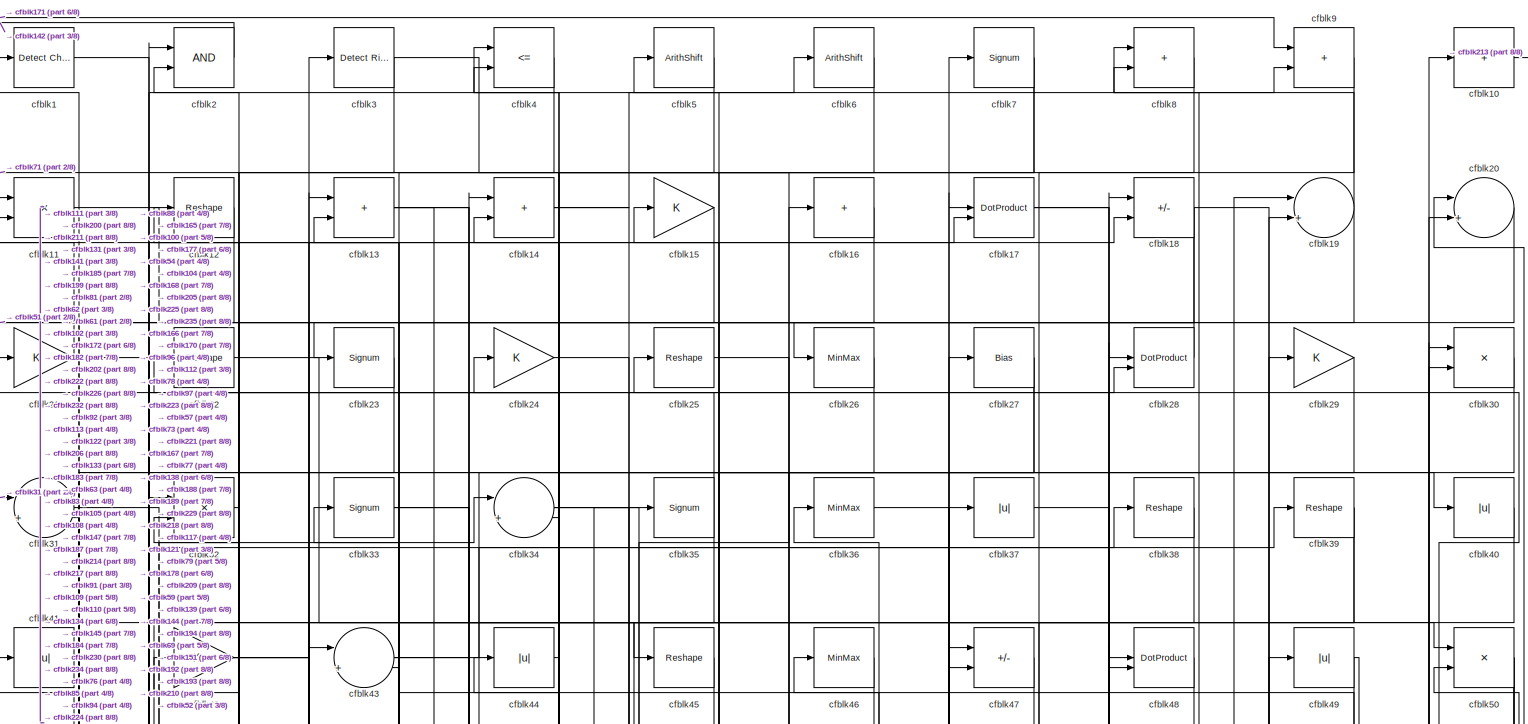
[diagram: root canvas - part 1/8, full width, top band]
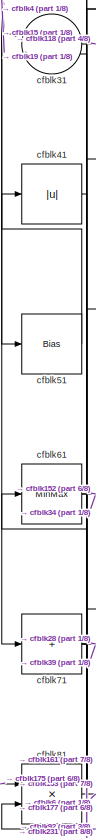
[diagram: root canvas - part 2/8, top left region]
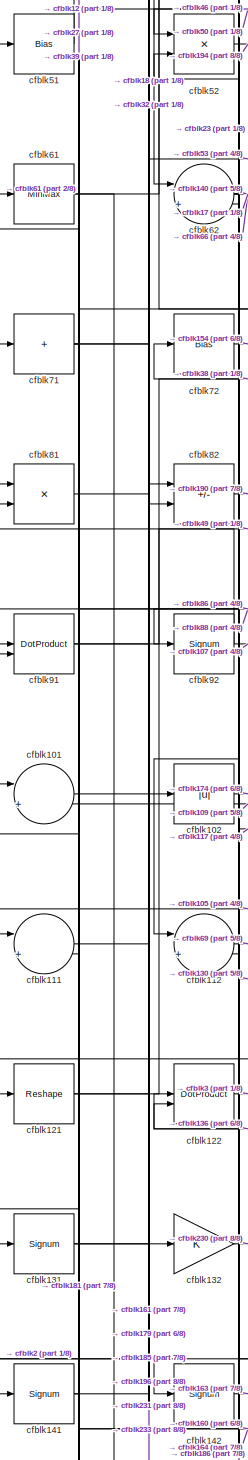
[diagram: root canvas - part 3/8, middle left region]
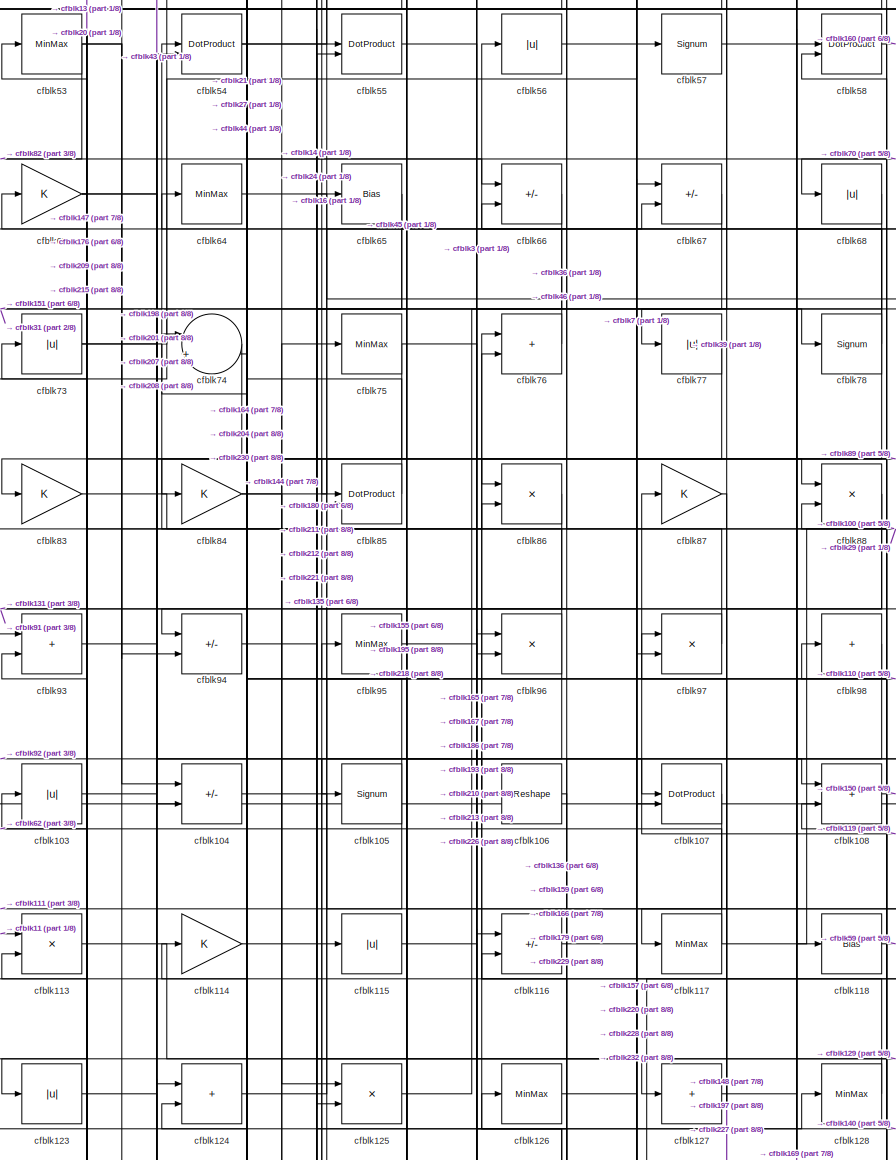
[diagram: root canvas - part 4/8, central region]
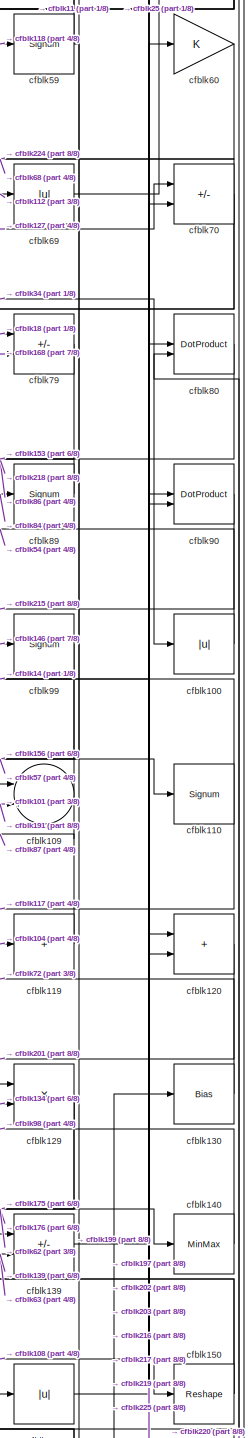
[diagram: root canvas - part 5/8, middle right region]
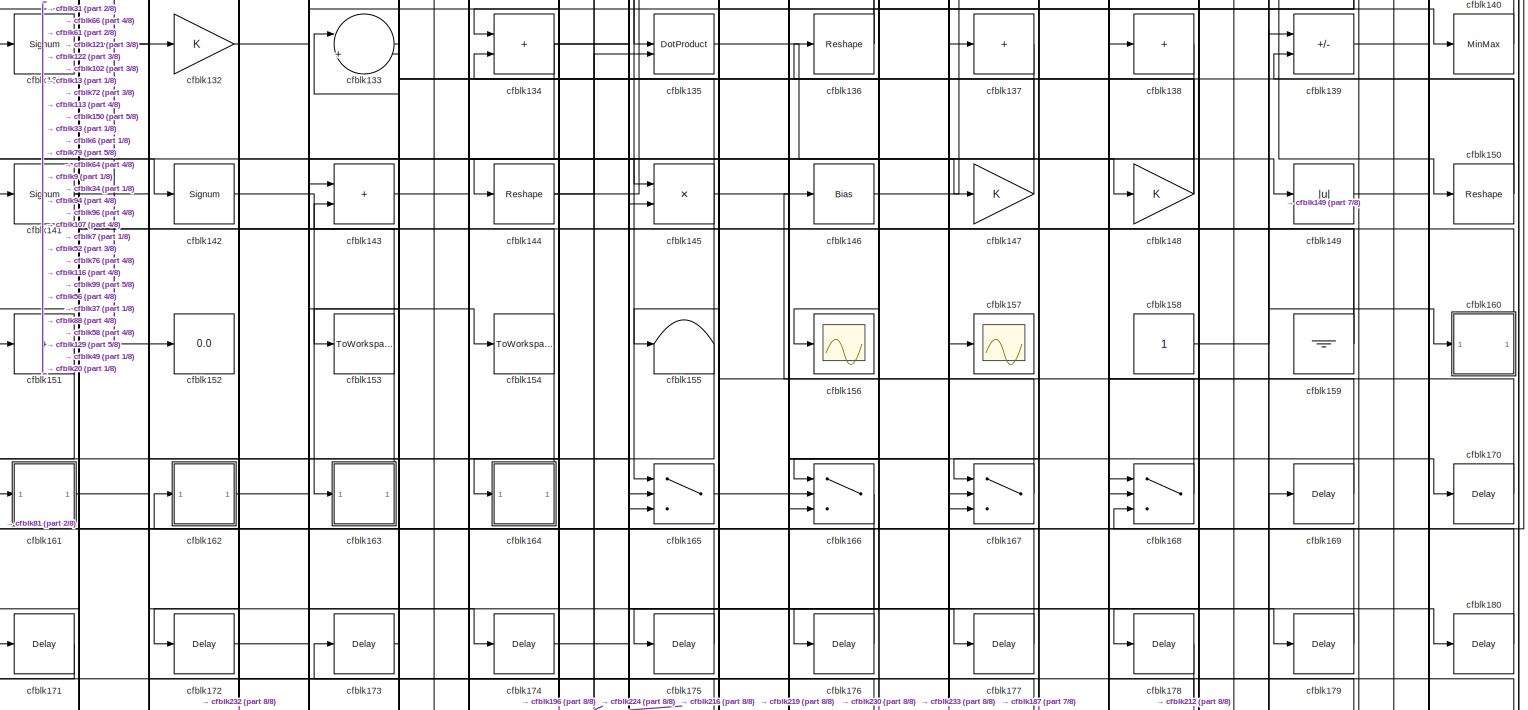
[diagram: root canvas - part 6/8, full width, middle band]
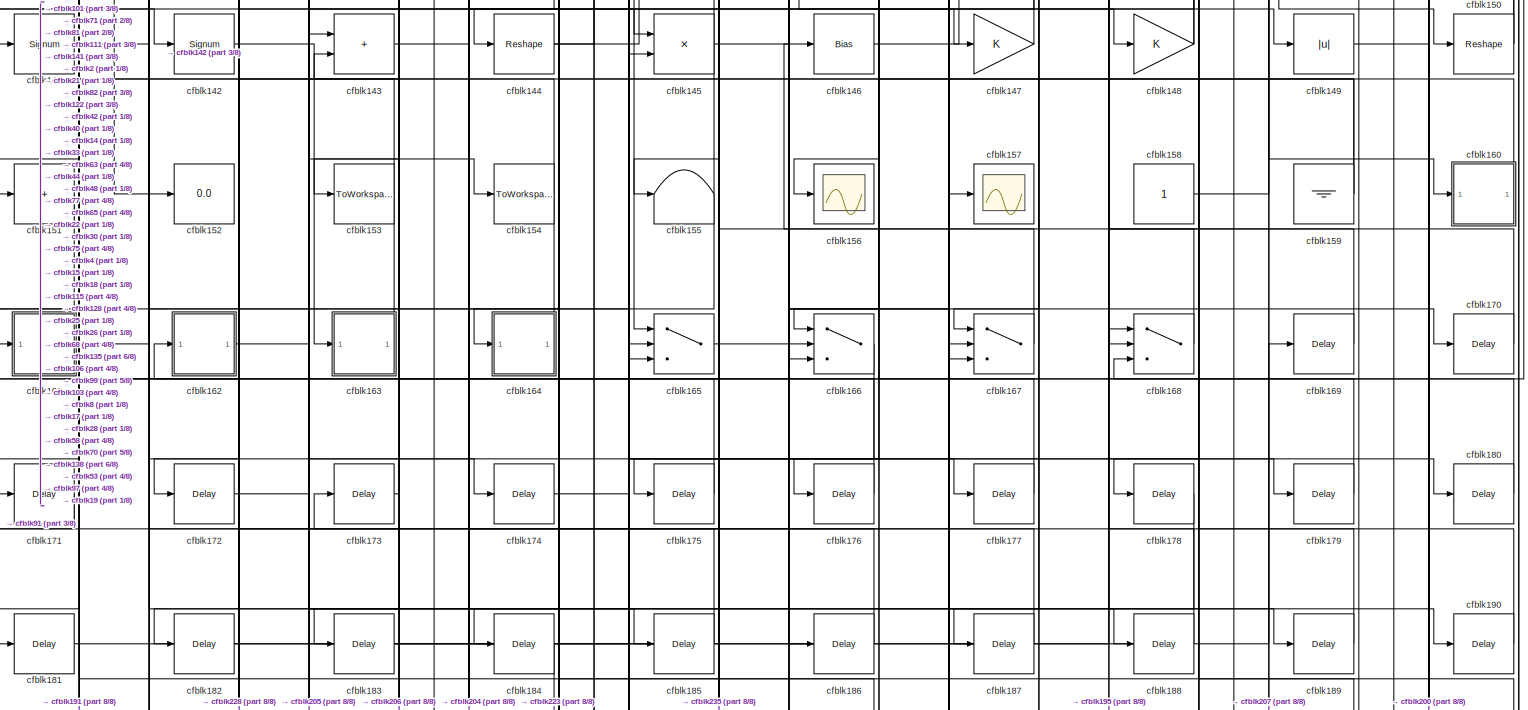
[diagram: root canvas - part 7/8, full width, bottom band]
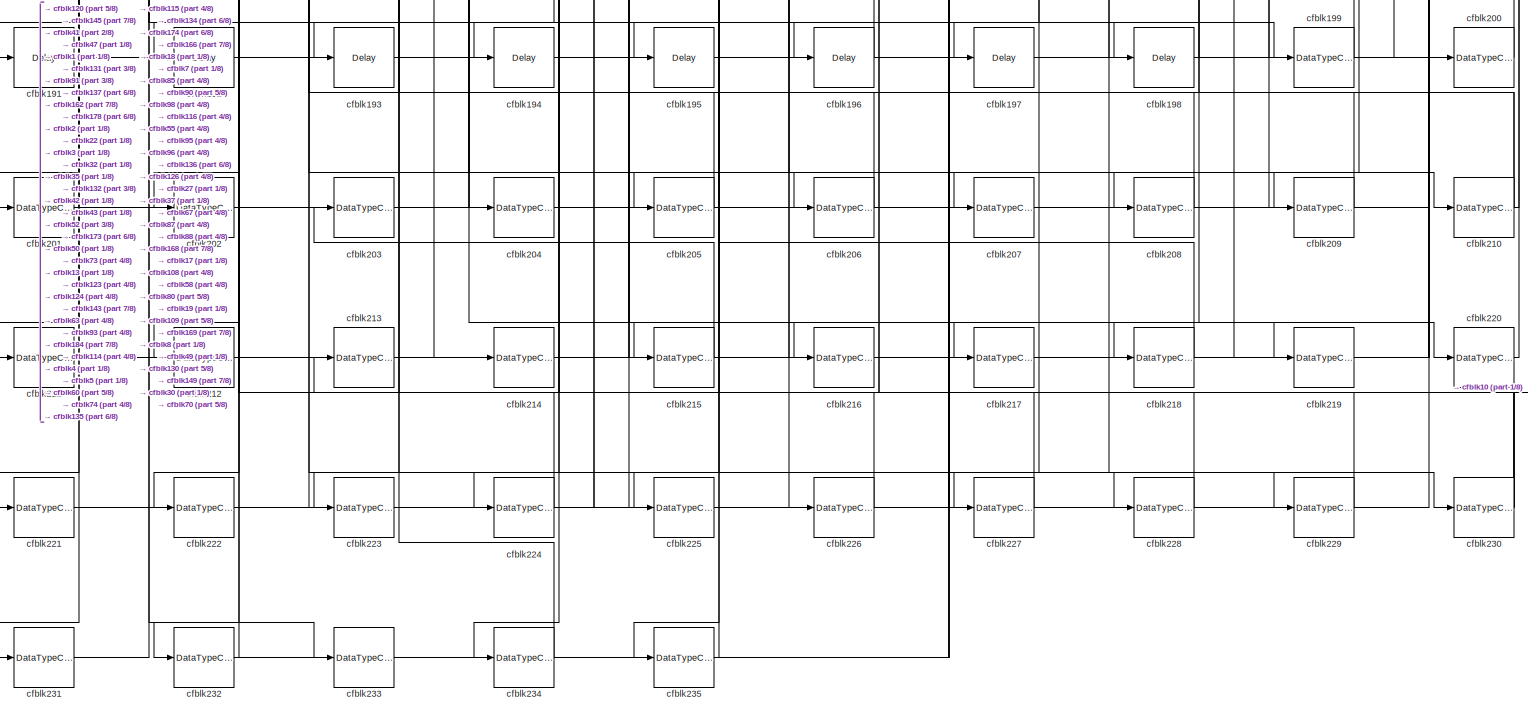
[diagram: root canvas - part 8/8, full width, bottom band]
MODEL slx_f41b4bfe7aee
KIND model
CONFIG AbsTol = auto
CONFIG EnableMultiTasking = off
CONFIG FixedStep = auto
CONFIG MaxStep = auto
CONFIG MinStep = auto
CONFIG RelTol = 1e-3
CONFIG SampleTimeConstraint = Unconstrained
CONFIG SolverName = VariableStepAuto
CONFIG StartTime = 0.0
CONFIG StopTime = 10.0
BLOCK [Reference] cfblk1  REF=simulink/Logic and Bit
Operations/Detect
Change
  LibrarySourceBlock = hdlsllib/Logic and Bit\nOperations/Detect\nChange
  SourceBlock = simulink/Logic and Bit\nOperations/Detect\nChange
  SourceType = Detect Change
BLOCK [Sum] cfblk10
  IconShape = rectangular
  Inputs = +
BLOCK [Abs] cfblk100
  SaturateOnIntegerOverflow = off
BLOCK [Sum] cfblk101
  Inputs = |++
BLOCK [Abs] cfblk102
  SaturateOnIntegerOverflow = off
BLOCK [Abs] cfblk103
  SaturateOnIntegerOverflow = off
BLOCK [Sum] cfblk104
  IconShape = rectangular
  Inputs = +-
BLOCK [Signum] cfblk105
BLOCK [Reshape] cfblk106
BLOCK [DotProduct] cfblk107
  OutDataTypeStr = Inherit: Inherit via internal rule
BLOCK [Sum] cfblk108
  IconShape = rectangular
BLOCK [Sum] cfblk109
  Inputs = |++
BLOCK [Product] cfblk11
  Inputs = */
  RndMeth = Zero
  SaturateOnIntegerOverflow = on
BLOCK [Signum] cfblk110
BLOCK [Sum] cfblk111
  Inputs = |++
BLOCK [Sum] cfblk112
  Inputs = |++
BLOCK [Product] cfblk113
  Inputs = */
  RndMeth = Zero
  SaturateOnIntegerOverflow = on
BLOCK [Gain] cfblk114
BLOCK [Abs] cfblk115
  SaturateOnIntegerOverflow = off
BLOCK [Sum] cfblk116
  IconShape = rectangular
  Inputs = +-
BLOCK [MinMax] cfblk117
BLOCK [Bias] cfblk118
  Bias = 0.0
  SaturateOnIntegerOverflow = off
BLOCK [Sum] cfblk119
  IconShape = rectangular
  Inputs = +
BLOCK [Reshape] cfblk12
BLOCK [Sum] cfblk120
  IconShape = rectangular
BLOCK [Reshape] cfblk121
BLOCK [DotProduct] cfblk122
  OutDataTypeStr = Inherit: Inherit via internal rule
BLOCK [Abs] cfblk123
  SaturateOnIntegerOverflow = off
BLOCK [Sum] cfblk124
  IconShape = rectangular
BLOCK [Product] cfblk125
  Inputs = */
  RndMeth = Zero
  SaturateOnIntegerOverflow = on
BLOCK [MinMax] cfblk126
BLOCK [Sum] cfblk127
  IconShape = rectangular
  Inputs = +
BLOCK [MinMax] cfblk128
BLOCK [Product] cfblk129
  Inputs = */
  RndMeth = Zero
  SaturateOnIntegerOverflow = on
BLOCK [Sum] cfblk13
  IconShape = rectangular
BLOCK [Bias] cfblk130
  Bias = 0.0
  SaturateOnIntegerOverflow = off
BLOCK [Signum] cfblk131
BLOCK [Gain] cfblk132
BLOCK [Sum] cfblk133
  Inputs = |++
BLOCK [Sum] cfblk134
  IconShape = rectangular
BLOCK [DotProduct] cfblk135
  OutDataTypeStr = Inherit: Inherit via internal rule
BLOCK [Reshape] cfblk136
BLOCK [Sum] cfblk137
  IconShape = rectangular
  Inputs = +
BLOCK [Sum] cfblk138
  IconShape = rectangular
  Inputs = +
BLOCK [Sum] cfblk139
  IconShape = rectangular
  Inputs = +-
BLOCK [Sum] cfblk14
  IconShape = rectangular
BLOCK [MinMax] cfblk140
BLOCK [Signum] cfblk141
BLOCK [Signum] cfblk142
BLOCK [Sum] cfblk143
  IconShape = rectangular
BLOCK [Reshape] cfblk144
BLOCK [Product] cfblk145
  Inputs = */
  RndMeth = Zero
  SaturateOnIntegerOverflow = on
BLOCK [Bias] cfblk146
  Bias = 0.0
  SaturateOnIntegerOverflow = off
BLOCK [Gain] cfblk147
BLOCK [Gain] cfblk148
BLOCK [Abs] cfblk149
  SaturateOnIntegerOverflow = off
BLOCK [Gain] cfblk15
BLOCK [Reshape] cfblk150
BLOCK [Sum] cfblk151
  IconShape = rectangular
  Inputs = +
BLOCK [Display] cfblk152
  Decimation = 1
BLOCK [ToWorkspace] cfblk153
  MaxDataPoints = inf
  SampleTime = -1
  SaveFormat = Timeseries
  VariableName = simout
BLOCK [ToWorkspace] cfblk154
  MaxDataPoints = inf
  SampleTime = -1
  SaveFormat = Timeseries
  VariableName = simout
BLOCK [Terminator] cfblk155
BLOCK [Scope] cfblk156
  Floating = off
  NumInputPorts = 1
  ScopeSpecificationString = Simulink.scopes.TimeScopeBlockCfg('CurrentConfiguration', extmgr.ConfigurationSet(extmgr.Configuration('Core','General UI',true),extmgr.Configuration('Core','Source UI',true),extmgr.Configuration('Sources','WiredSimulink',true,'DataLoggingVariableName','ScopeData2','DataLoggingSaveFormat','Array','DataLoggingLimitDataPoints',true,'DataLoggingDecimation','1'),extmgr.Configuration('Visuals','Time Do...<+868ch>
BLOCK [Scope] cfblk157
  Floating = off
  NumInputPorts = 1
  ScopeSpecificationString = Simulink.scopes.TimeScopeBlockCfg('CurrentConfiguration', extmgr.ConfigurationSet(extmgr.Configuration('Core','General UI',true),extmgr.Configuration('Core','Source UI',true),extmgr.Configuration('Sources','WiredSimulink',true,'DataLoggingVariableName','ScopeData2','DataLoggingSaveFormat','Array','DataLoggingLimitDataPoints',true,'DataLoggingDecimation','1'),extmgr.Configuration('Visuals','Time Do...<+868ch>
BLOCK [Constant] cfblk158
  SampleTime = -1
BLOCK [Ground] cfblk159
BLOCK [Sum] cfblk16
  IconShape = rectangular
  Inputs = +
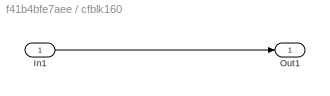
BLOCK [SubSystem] cfblk160
  LibrarySourceBlock = hdlsllib/Ports &\nSubsystems/Subsystem
BLOCK [Inport] cfblk160/In1
BLOCK [Outport] cfblk160/Out1
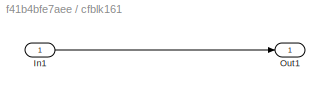
BLOCK [SubSystem] cfblk161
  LibrarySourceBlock = hdlsllib/Ports &\nSubsystems/Subsystem
BLOCK [Inport] cfblk161/In1
BLOCK [Outport] cfblk161/Out1
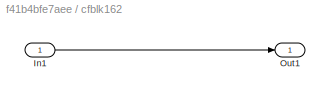
BLOCK [SubSystem] cfblk162
  LibrarySourceBlock = hdlsllib/Ports &\nSubsystems/Subsystem
BLOCK [Inport] cfblk162/In1
BLOCK [Outport] cfblk162/Out1
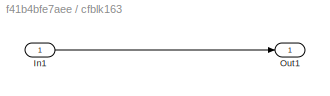
BLOCK [SubSystem] cfblk163
  LibrarySourceBlock = hdlsllib/Ports &\nSubsystems/Subsystem
BLOCK [Inport] cfblk163/In1
BLOCK [Outport] cfblk163/Out1
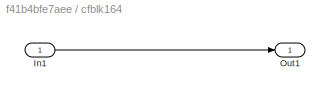
BLOCK [SubSystem] cfblk164
  LibrarySourceBlock = hdlsllib/Ports &\nSubsystems/Subsystem
BLOCK [Inport] cfblk164/In1
BLOCK [Outport] cfblk164/Out1
BLOCK [Switch] cfblk165
  InputSameDT = off
  SaturateOnIntegerOverflow = off
BLOCK [Switch] cfblk166
  InputSameDT = off
  SaturateOnIntegerOverflow = off
BLOCK [Switch] cfblk167
  InputSameDT = off
  SaturateOnIntegerOverflow = off
BLOCK [Switch] cfblk168
  InputSameDT = off
  SaturateOnIntegerOverflow = off
BLOCK [Delay] cfblk169
  InputPortMap = u0
  SampleTime = 1
BLOCK [DotProduct] cfblk17
  OutDataTypeStr = Inherit: Inherit via internal rule
BLOCK [Delay] cfblk170
  InputPortMap = u0
  SampleTime = 1
BLOCK [Delay] cfblk171
  InputPortMap = u0
  SampleTime = 1
BLOCK [Delay] cfblk172
  InputPortMap = u0
  SampleTime = 1
BLOCK [Delay] cfblk173
  InputPortMap = u0
  SampleTime = 1
BLOCK [Delay] cfblk174
  InputPortMap = u0
  SampleTime = 1
BLOCK [Delay] cfblk175
  InputPortMap = u0
  SampleTime = 1
BLOCK [Delay] cfblk176
  InputPortMap = u0
  SampleTime = 1
BLOCK [Delay] cfblk177
  InputPortMap = u0
  SampleTime = 1
BLOCK [Delay] cfblk178
  InputPortMap = u0
  SampleTime = 1
BLOCK [Delay] cfblk179
  InputPortMap = u0
  SampleTime = 1
BLOCK [Sum] cfblk18
  IconShape = rectangular
  Inputs = +-
BLOCK [Delay] cfblk180
  InputPortMap = u0
  SampleTime = 1
BLOCK [Delay] cfblk181
  InputPortMap = u0
  SampleTime = 1
BLOCK [Delay] cfblk182
  InputPortMap = u0
  SampleTime = 1
BLOCK [Delay] cfblk183
  InputPortMap = u0
  SampleTime = 1
BLOCK [Delay] cfblk184
  InputPortMap = u0
  SampleTime = 1
BLOCK [Delay] cfblk185
  InputPortMap = u0
  SampleTime = 1
BLOCK [Delay] cfblk186
  InputPortMap = u0
  SampleTime = 1
BLOCK [Delay] cfblk187
  InputPortMap = u0
  SampleTime = 1
BLOCK [Delay] cfblk188
  InputPortMap = u0
  SampleTime = 1
BLOCK [Delay] cfblk189
  InputPortMap = u0
  SampleTime = 1
BLOCK [Sum] cfblk19
  Inputs = |++
BLOCK [Delay] cfblk190
  InputPortMap = u0
  SampleTime = 1
BLOCK [Delay] cfblk191
  InputPortMap = u0
  SampleTime = 1
BLOCK [Delay] cfblk192
  InputPortMap = u0
  SampleTime = 1
BLOCK [Delay] cfblk193
  InputPortMap = u0
  SampleTime = 1
BLOCK [Delay] cfblk194
  InputPortMap = u0
  SampleTime = 1
BLOCK [Delay] cfblk195
  InputPortMap = u0
  SampleTime = 1
BLOCK [Delay] cfblk196
  InputPortMap = u0
  SampleTime = 1
BLOCK [Delay] cfblk197
  InputPortMap = u0
  SampleTime = 1
BLOCK [Delay] cfblk198
  InputPortMap = u0
  SampleTime = 1
BLOCK [DataTypeConversion] cfblk199
  RndMeth = Floor
  SaturateOnIntegerOverflow = off
BLOCK [Logic] cfblk2
  AllPortsSameDT = off
  OutDataTypeStr = boolean
BLOCK [Sum] cfblk20
  Inputs = |++
BLOCK [DataTypeConversion] cfblk200
  OutDataTypeStr = uint8
  RndMeth = Floor
  SaturateOnIntegerOverflow = off
BLOCK [DataTypeConversion] cfblk201
  OutDataTypeStr = uint8
  RndMeth = Floor
  SaturateOnIntegerOverflow = off
BLOCK [DataTypeConversion] cfblk202
  OutDataTypeStr = uint8
  RndMeth = Floor
  SaturateOnIntegerOverflow = off
BLOCK [DataTypeConversion] cfblk203
  OutDataTypeStr = uint8
  RndMeth = Floor
  SaturateOnIntegerOverflow = off
BLOCK [DataTypeConversion] cfblk204
  OutDataTypeStr = uint8
  RndMeth = Floor
  SaturateOnIntegerOverflow = off
BLOCK [DataTypeConversion] cfblk205
  OutDataTypeStr = uint8
  RndMeth = Floor
  SaturateOnIntegerOverflow = off
BLOCK [DataTypeConversion] cfblk206
  OutDataTypeStr = uint8
  RndMeth = Floor
  SaturateOnIntegerOverflow = off
BLOCK [DataTypeConversion] cfblk207
  OutDataTypeStr = uint8
  RndMeth = Floor
  SaturateOnIntegerOverflow = off
BLOCK [DataTypeConversion] cfblk208
  OutDataTypeStr = uint8
  RndMeth = Floor
  SaturateOnIntegerOverflow = off
BLOCK [DataTypeConversion] cfblk209
  OutDataTypeStr = uint8
  RndMeth = Floor
  SaturateOnIntegerOverflow = off
BLOCK [Gain] cfblk21
BLOCK [DataTypeConversion] cfblk210
  RndMeth = Floor
  SaturateOnIntegerOverflow = off
BLOCK [DataTypeConversion] cfblk211
  OutDataTypeStr = uint8
  RndMeth = Floor
  SaturateOnIntegerOverflow = off
BLOCK [DataTypeConversion] cfblk212
  OutDataTypeStr = uint8
  RndMeth = Floor
  SaturateOnIntegerOverflow = off
BLOCK [DataTypeConversion] cfblk213
  OutDataTypeStr = uint8
  RndMeth = Floor
  SaturateOnIntegerOverflow = off
BLOCK [DataTypeConversion] cfblk214
  OutDataTypeStr = uint8
  RndMeth = Floor
  SaturateOnIntegerOverflow = off
BLOCK [DataTypeConversion] cfblk215
  OutDataTypeStr = uint8
  RndMeth = Floor
  SaturateOnIntegerOverflow = off
BLOCK [DataTypeConversion] cfblk216
  OutDataTypeStr = uint8
  RndMeth = Floor
  SaturateOnIntegerOverflow = off
BLOCK [DataTypeConversion] cfblk217
  OutDataTypeStr = uint8
  RndMeth = Floor
  SaturateOnIntegerOverflow = off
BLOCK [DataTypeConversion] cfblk218
  RndMeth = Floor
  SaturateOnIntegerOverflow = off
BLOCK [DataTypeConversion] cfblk219
  OutDataTypeStr = uint8
  RndMeth = Floor
  SaturateOnIntegerOverflow = off
BLOCK [Reshape] cfblk22
BLOCK [DataTypeConversion] cfblk220
  OutDataTypeStr = uint8
  RndMeth = Floor
  SaturateOnIntegerOverflow = off
BLOCK [DataTypeConversion] cfblk221
  RndMeth = Floor
  SaturateOnIntegerOverflow = off
BLOCK [DataTypeConversion] cfblk222
  OutDataTypeStr = uint8
  RndMeth = Floor
  SaturateOnIntegerOverflow = off
BLOCK [DataTypeConversion] cfblk223
  OutDataTypeStr = uint8
  RndMeth = Floor
  SaturateOnIntegerOverflow = off
BLOCK [DataTypeConversion] cfblk224
  RndMeth = Floor
  SaturateOnIntegerOverflow = off
BLOCK [DataTypeConversion] cfblk225
  OutDataTypeStr = uint8
  RndMeth = Floor
  SaturateOnIntegerOverflow = off
BLOCK [DataTypeConversion] cfblk226
  OutDataTypeStr = uint8
  RndMeth = Floor
  SaturateOnIntegerOverflow = off
BLOCK [DataTypeConversion] cfblk227
  OutDataTypeStr = uint8
  RndMeth = Floor
  SaturateOnIntegerOverflow = off
BLOCK [DataTypeConversion] cfblk228
  OutDataTypeStr = uint8
  RndMeth = Floor
  SaturateOnIntegerOverflow = off
BLOCK [DataTypeConversion] cfblk229
  OutDataTypeStr = uint8
  RndMeth = Floor
  SaturateOnIntegerOverflow = off
BLOCK [Signum] cfblk23
BLOCK [DataTypeConversion] cfblk230
  RndMeth = Floor
  SaturateOnIntegerOverflow = off
BLOCK [DataTypeConversion] cfblk231
  OutDataTypeStr = uint8
  RndMeth = Floor
  SaturateOnIntegerOverflow = off
BLOCK [DataTypeConversion] cfblk232
  RndMeth = Floor
  SaturateOnIntegerOverflow = off
BLOCK [DataTypeConversion] cfblk233
  OutDataTypeStr = uint8
  RndMeth = Floor
  SaturateOnIntegerOverflow = off
BLOCK [DataTypeConversion] cfblk234
  RndMeth = Floor
  SaturateOnIntegerOverflow = off
BLOCK [DataTypeConversion] cfblk235
  OutDataTypeStr = uint8
  RndMeth = Floor
  SaturateOnIntegerOverflow = off
BLOCK [Gain] cfblk24
BLOCK [Reshape] cfblk25
BLOCK [MinMax] cfblk26
BLOCK [Bias] cfblk27
  Bias = 0.0
  SaturateOnIntegerOverflow = off
BLOCK [DotProduct] cfblk28
  OutDataTypeStr = Inherit: Inherit via internal rule
BLOCK [Gain] cfblk29
BLOCK [Reference] cfblk3  REF=hdlsllib/Logic and Bit
Operations/Detect Rise
Nonnegative
  SourceBlock = hdlsllib/Logic and Bit\nOperations/Detect Rise\nNonnegative
  SourceType = Detect Rise Nonnegative
BLOCK [Product] cfblk30
  Inputs = */
  RndMeth = Zero
  SaturateOnIntegerOverflow = on
BLOCK [Sum] cfblk31
  Inputs = |++
BLOCK [Product] cfblk32
  Inputs = */
  RndMeth = Zero
  SaturateOnIntegerOverflow = on
BLOCK [Signum] cfblk33
BLOCK [Sum] cfblk34
  Inputs = |++
BLOCK [Signum] cfblk35
BLOCK [MinMax] cfblk36
BLOCK [Abs] cfblk37
  SaturateOnIntegerOverflow = off
BLOCK [Reshape] cfblk38
BLOCK [Reshape] cfblk39
BLOCK [RelationalOperator] cfblk4
  InputSameDT = off
  Operator = <=
  OutDataTypeStr = boolean
BLOCK [Abs] cfblk40
  SaturateOnIntegerOverflow = off
BLOCK [Abs] cfblk41
  SaturateOnIntegerOverflow = off
BLOCK [Gain] cfblk42
BLOCK [Sum] cfblk43
  Inputs = |++
BLOCK [Abs] cfblk44
  SaturateOnIntegerOverflow = off
BLOCK [Reshape] cfblk45
BLOCK [MinMax] cfblk46
BLOCK [Sum] cfblk47
  IconShape = rectangular
  Inputs = +-
BLOCK [DotProduct] cfblk48
  OutDataTypeStr = Inherit: Inherit via internal rule
BLOCK [Abs] cfblk49
  SaturateOnIntegerOverflow = off
BLOCK [ArithShift] cfblk5
  BitShiftNumber = 8
  InputPortMap = u0
BLOCK [Product] cfblk50
  Inputs = */
  RndMeth = Zero
  SaturateOnIntegerOverflow = on
BLOCK [Bias] cfblk51
  Bias = 0.0
  SaturateOnIntegerOverflow = off
BLOCK [Product] cfblk52
  Inputs = */
  RndMeth = Zero
  SaturateOnIntegerOverflow = on
BLOCK [MinMax] cfblk53
BLOCK [DotProduct] cfblk54
  OutDataTypeStr = Inherit: Inherit via internal rule
BLOCK [DotProduct] cfblk55
  OutDataTypeStr = Inherit: Inherit via internal rule
BLOCK [Abs] cfblk56
  SaturateOnIntegerOverflow = off
BLOCK [Signum] cfblk57
BLOCK [DotProduct] cfblk58
  OutDataTypeStr = Inherit: Inherit via internal rule
BLOCK [Signum] cfblk59
BLOCK [ArithShift] cfblk6
  BitShiftNumber = 8
  InputPortMap = u0
BLOCK [Gain] cfblk60
BLOCK [MinMax] cfblk61
BLOCK [Sum] cfblk62
  Inputs = |++
BLOCK [Gain] cfblk63
BLOCK [MinMax] cfblk64
BLOCK [Bias] cfblk65
  Bias = 0.0
  SaturateOnIntegerOverflow = off
BLOCK [Sum] cfblk66
  IconShape = rectangular
  Inputs = +-
BLOCK [Sum] cfblk67
  IconShape = rectangular
  Inputs = +-
BLOCK [Abs] cfblk68
  SaturateOnIntegerOverflow = off
BLOCK [Abs] cfblk69
  SaturateOnIntegerOverflow = off
BLOCK [Signum] cfblk7
BLOCK [Sum] cfblk70
  IconShape = rectangular
  Inputs = +-
BLOCK [Sum] cfblk71
  IconShape = rectangular
  Inputs = +
BLOCK [Bias] cfblk72
  Bias = 0.0
  SaturateOnIntegerOverflow = off
BLOCK [Abs] cfblk73
  SaturateOnIntegerOverflow = off
BLOCK [Sum] cfblk74
  Inputs = |++
BLOCK [MinMax] cfblk75
BLOCK [Sum] cfblk76
  IconShape = rectangular
BLOCK [Abs] cfblk77
  SaturateOnIntegerOverflow = off
BLOCK [Signum] cfblk78
BLOCK [Sum] cfblk79
  IconShape = rectangular
  Inputs = +-
BLOCK [Sum] cfblk8
  IconShape = rectangular
BLOCK [DotProduct] cfblk80
  OutDataTypeStr = Inherit: Inherit via internal rule
BLOCK [Product] cfblk81
  Inputs = */
  RndMeth = Zero
  SaturateOnIntegerOverflow = on
BLOCK [Sum] cfblk82
  IconShape = rectangular
  Inputs = +-
BLOCK [Gain] cfblk83
BLOCK [Gain] cfblk84
BLOCK [DotProduct] cfblk85
  OutDataTypeStr = Inherit: Inherit via internal rule
BLOCK [Product] cfblk86
  Inputs = */
  RndMeth = Zero
  SaturateOnIntegerOverflow = on
BLOCK [Gain] cfblk87
BLOCK [Product] cfblk88
  Inputs = */
  RndMeth = Zero
  SaturateOnIntegerOverflow = on
BLOCK [Signum] cfblk89
BLOCK [Sum] cfblk9
  IconShape = rectangular
BLOCK [DotProduct] cfblk90
  OutDataTypeStr = Inherit: Inherit via internal rule
BLOCK [DotProduct] cfblk91
  OutDataTypeStr = Inherit: Inherit via internal rule
BLOCK [Signum] cfblk92
BLOCK [Sum] cfblk93
  IconShape = rectangular
BLOCK [Sum] cfblk94
  IconShape = rectangular
  Inputs = +-
BLOCK [MinMax] cfblk95
BLOCK [Product] cfblk96
  Inputs = */
  RndMeth = Zero
  SaturateOnIntegerOverflow = on
BLOCK [Product] cfblk97
  Inputs = */
  RndMeth = Zero
  SaturateOnIntegerOverflow = on
BLOCK [Sum] cfblk98
  IconShape = rectangular
  Inputs = +
BLOCK [Signum] cfblk99
LINE cfblk100:1 -> cfblk54:1
LINE cfblk101:1 -> cfblk112:1
LINE cfblk102:1 -> cfblk174:1
LINE cfblk103:1 -> cfblk54:2
LINE cfblk104:1 -> cfblk119:1
NET cfblk105:1 -> cfblk111:2, cfblk44:1
LINE cfblk106:1 -> cfblk166:1
LINE cfblk107:1 -> cfblk155:1
LINE cfblk108:1 -> cfblk150:1
NET cfblk109:1 -> cfblk101:2, cfblk14:2
LINE cfblk10:1 -> cfblk213:1
NET cfblk110:1 -> cfblk117:1, cfblk34:2
LINE cfblk111:1 -> cfblk185:1
LINE cfblk112:1 -> cfblk69:1
LINE cfblk113:1 -> cfblk127:1
LINE cfblk114:1 -> cfblk65:1
LINE cfblk115:1 -> cfblk186:1
LINE cfblk116:1 -> cfblk220:1
NET cfblk117:1 -> cfblk29:1, cfblk62:2
LINE cfblk118:1 -> cfblk59:1
LINE cfblk119:1 -> cfblk87:1
LINE cfblk11:1 -> cfblk113:1
LINE cfblk120:1 -> cfblk201:1
NET cfblk121:1 -> cfblk179:1, cfblk49:1
LINE cfblk122:1 -> cfblk3:1
LINE cfblk123:1 -> cfblk208:1
LINE cfblk124:1 -> cfblk67:2
LINE cfblk125:1 -> cfblk78:1
LINE cfblk126:1 -> cfblk228:1
LINE cfblk127:1 -> cfblk70:1
LINE cfblk128:1 -> cfblk76:1
NET cfblk129:1 -> cfblk175:1, cfblk176:1
LINE cfblk12:1 -> cfblk111:1
LINE cfblk130:1 -> cfblk72:1
NET cfblk131:1 -> cfblk233:1, cfblk32:1
LINE cfblk132:1 -> cfblk230:1
LINE cfblk133:1 -> cfblk33:1
NET cfblk134:1 -> cfblk129:2, cfblk171:1, cfblk216:1
LINE cfblk135:1 -> cfblk149:1
NET cfblk136:1 -> cfblk52:2, cfblk76:2
LINE cfblk137:1 -> cfblk232:1
LINE cfblk138:1 -> cfblk187:1
LINE cfblk139:1 -> cfblk20:2
NET cfblk13:1 -> cfblk108:1, cfblk214:1, cfblk217:1
LINE cfblk140:1 -> cfblk98:1
NET cfblk141:1 -> cfblk181:1, cfblk18:2
LINE cfblk142:1 -> cfblk163:1
LINE cfblk143:1 -> cfblk204:1
NET cfblk144:1 -> cfblk30:1, cfblk75:1
NET cfblk145:1 -> cfblk167:3, cfblk191:1, cfblk4:1
LINE cfblk146:1 -> cfblk99:1
LINE cfblk147:1 -> cfblk103:1
NET cfblk148:1 -> cfblk53:1, cfblk97:1
LINE cfblk149:1 -> cfblk200:1
NET cfblk14:1 -> cfblk97:2, cfblk9:2
NET cfblk150:1 -> cfblk139:2, cfblk63:1
LINE cfblk151:1 -> cfblk20:1
LINE cfblk158:1 -> cfblk139:1
NET cfblk159:1 -> cfblk64:1, cfblk66:2
LINE cfblk15:1 -> cfblk51:1
LINE cfblk160/In1:1 -> cfblk160/Out1:1
LINE cfblk160:1 -> cfblk122:1
LINE cfblk161/In1:1 -> cfblk161/Out1:1
LINE cfblk161:1 -> cfblk82:1
LINE cfblk162/In1:1 -> cfblk162/Out1:1
LINE cfblk162:1 -> cfblk188:1
LINE cfblk163/In1:1 -> cfblk163/Out1:1
LINE cfblk163:1 -> cfblk81:2
LINE cfblk164/In1:1 -> cfblk164/Out1:1
LINE cfblk164:1 -> cfblk101:1
LINE cfblk165:1 -> cfblk128:1
LINE cfblk166:1 -> cfblk235:1
LINE cfblk167:1 -> cfblk146:1
LINE cfblk168:1 -> cfblk15:1
LINE cfblk169:1 -> cfblk58:1
LINE cfblk16:1 -> cfblk23:1
LINE cfblk170:1 -> cfblk48:1
LINE cfblk171:1 -> cfblk9:1
LINE cfblk172:1 -> cfblk13:1
LINE cfblk173:1 -> cfblk133:1
LINE cfblk174:1 -> cfblk219:1
LINE cfblk175:1 -> cfblk81:1
LINE cfblk176:1 -> cfblk113:2
LINE cfblk177:1 -> cfblk31:2
LINE cfblk178:1 -> cfblk212:1
LINE cfblk179:1 -> cfblk116:2
NET cfblk17:1 -> cfblk189:1, cfblk229:1
LINE cfblk180:1 -> cfblk88:2
LINE cfblk181:1 -> cfblk145:2
LINE cfblk182:1 -> cfblk19:2
LINE cfblk183:1 -> cfblk18:1
LINE cfblk184:1 -> cfblk223:1
LINE cfblk185:1 -> cfblk2:1
LINE cfblk186:1 -> cfblk122:2
LINE cfblk187:1 -> cfblk14:1
LINE cfblk188:1 -> cfblk28:1
LINE cfblk189:1 -> cfblk168:3
NET cfblk18:1 -> cfblk182:1, cfblk225:1, cfblk79:1
LINE cfblk190:1 -> cfblk91:1
LINE cfblk191:1 -> cfblk109:2
LINE cfblk192:1 -> cfblk2:2
LINE cfblk193:1 -> cfblk96:1
LINE cfblk194:1 -> cfblk30:2
LINE cfblk195:1 -> cfblk168:1
LINE cfblk196:1 -> cfblk134:2
LINE cfblk197:1 -> cfblk70:2
LINE cfblk198:1 -> cfblk108:2
NET cfblk199:1 -> cfblk130:1, cfblk8:2
NET cfblk19:1 -> cfblk31:1, cfblk8:1
LINE cfblk1:1 -> cfblk199:1
LINE cfblk200:1 -> cfblk1:1
LINE cfblk201:1 -> cfblk124:1
LINE cfblk202:1 -> cfblk120:1
LINE cfblk203:1 -> cfblk120:2
LINE cfblk204:1 -> cfblk74:1
LINE cfblk205:1 -> cfblk143:1
LINE cfblk206:1 -> cfblk143:2
LINE cfblk207:1 -> cfblk169:1
LINE cfblk208:1 -> cfblk93:1
LINE cfblk209:1 -> cfblk93:2
LINE cfblk20:1 -> cfblk83:1
NET cfblk210:1 -> cfblk114:1, cfblk50:2, cfblk58:2
LINE cfblk211:1 -> cfblk55:1
LINE cfblk212:1 -> cfblk55:2
LINE cfblk213:1 -> cfblk116:1
LINE cfblk214:1 -> cfblk10:1
LINE cfblk215:1 -> cfblk73:1
LINE cfblk216:1 -> cfblk90:1
LINE cfblk217:1 -> cfblk90:2
NET cfblk218:1 -> cfblk19:1, cfblk85:2
LINE cfblk219:1 -> cfblk80:1
NET cfblk21:1 -> cfblk11:1, cfblk165:3
LINE cfblk220:1 -> cfblk80:2
NET cfblk221:1 -> cfblk115:1, cfblk37:1, cfblk43:1
LINE cfblk222:1 -> cfblk47:1
LINE cfblk223:1 -> cfblk47:2
NET cfblk224:1 -> cfblk135:2, cfblk32:2, cfblk35:1
LINE cfblk225:1 -> cfblk60:1
LINE cfblk226:1 -> cfblk22:1
LINE cfblk227:1 -> cfblk95:1
LINE cfblk228:1 -> cfblk162:1
LINE cfblk229:1 -> cfblk126:1
LINE cfblk22:1 -> cfblk165:1
NET cfblk230:1 -> cfblk124:2, cfblk136:1, cfblk173:1, cfblk4:2
LINE cfblk231:1 -> cfblk132:1
NET cfblk232:1 -> cfblk42:1, cfblk67:1
LINE cfblk233:1 -> cfblk137:1
NET cfblk234:1 -> cfblk17:1, cfblk203:1, cfblk27:1
LINE cfblk235:1 -> cfblk5:1
LINE cfblk23:1 -> cfblk102:1
LINE cfblk24:1 -> cfblk88:1
LINE cfblk25:1 -> cfblk170:1
LINE cfblk26:1 -> cfblk166:3
NET cfblk27:1 -> cfblk141:1, cfblk94:1
LINE cfblk28:1 -> cfblk26:1
LINE cfblk29:1 -> cfblk45:1
LINE cfblk2:1 -> cfblk142:1
LINE cfblk30:1 -> cfblk211:1
LINE cfblk31:1 -> cfblk118:1
LINE cfblk32:1 -> cfblk92:1
NET cfblk33:1 -> cfblk147:1, cfblk48:2
NET cfblk34:1 -> cfblk100:1, cfblk177:1
NET cfblk35:1 -> cfblk12:1, cfblk222:1
LINE cfblk36:1 -> cfblk57:1
LINE cfblk37:1 -> cfblk138:1
LINE cfblk38:1 -> cfblk62:1
NET cfblk39:1 -> cfblk121:1, cfblk77:1
NET cfblk3:1 -> cfblk202:1, cfblk96:2
LINE cfblk40:1 -> cfblk183:1
LINE cfblk41:1 -> cfblk231:1
NET cfblk42:1 -> cfblk145:1, cfblk206:1, cfblk50:1
NET cfblk43:1 -> cfblk105:1, cfblk40:1
LINE cfblk44:1 -> cfblk184:1
LINE cfblk45:1 -> cfblk104:2
LINE cfblk46:1 -> cfblk112:2
LINE cfblk47:1 -> cfblk221:1
LINE cfblk48:1 -> cfblk144:1
NET cfblk49:1 -> cfblk178:1, cfblk209:1
LINE cfblk4:1 -> cfblk71:1
NET cfblk50:1 -> cfblk192:1, cfblk193:1, cfblk52:1
LINE cfblk51:1 -> cfblk41:1
LINE cfblk52:1 -> cfblk194:1
NET cfblk53:1 -> cfblk104:1, cfblk82:2, cfblk94:2
NET cfblk54:1 -> cfblk129:1, cfblk16:1
LINE cfblk55:1 -> cfblk210:1
LINE cfblk56:1 -> cfblk157:1
LINE cfblk57:1 -> cfblk110:1
LINE cfblk58:1 -> cfblk160:1
NET cfblk59:1 -> cfblk109:1, cfblk11:2
LINE cfblk5:1 -> cfblk234:1
LINE cfblk60:1 -> cfblk224:1
NET cfblk61:1 -> cfblk152:1, cfblk34:1
NET cfblk62:1 -> cfblk140:1, cfblk17:2, cfblk66:1
NET cfblk63:1 -> cfblk148:1, cfblk198:1, cfblk43:2
LINE cfblk64:1 -> cfblk106:1
NET cfblk65:1 -> cfblk125:2, cfblk165:2
LINE cfblk66:1 -> cfblk151:1
LINE cfblk67:1 -> cfblk74:2
LINE cfblk68:1 -> cfblk166:2
LINE cfblk69:1 -> cfblk25:1
LINE cfblk6:1 -> cfblk133:2
NET cfblk70:1 -> cfblk168:2, cfblk68:1, cfblk79:2
NET cfblk71:1 -> cfblk161:1, cfblk28:2, cfblk39:1
LINE cfblk72:1 -> cfblk154:1
NET cfblk73:1 -> cfblk7:1, cfblk85:1
LINE cfblk74:1 -> cfblk123:1
NET cfblk75:1 -> cfblk167:2, cfblk84:1
LINE cfblk76:1 -> cfblk24:1
LINE cfblk77:1 -> cfblk164:1
NET cfblk78:1 -> cfblk107:2, cfblk36:1, cfblk56:1
LINE cfblk79:1 -> cfblk153:1
NET cfblk7:1 -> cfblk172:1, cfblk205:1
LINE cfblk80:1 -> cfblk218:1
LINE cfblk81:1 -> cfblk6:1
LINE cfblk82:1 -> cfblk190:1
LINE cfblk83:1 -> cfblk86:2
NET cfblk84:1 -> cfblk125:1, cfblk89:1
LINE cfblk85:1 -> cfblk21:1
LINE cfblk86:1 -> cfblk131:1
LINE cfblk87:1 -> cfblk227:1
NET cfblk88:1 -> cfblk197:1, cfblk91:2
LINE cfblk89:1 -> cfblk86:1
LINE cfblk8:1 -> cfblk167:1
LINE cfblk90:1 -> cfblk215:1
NET cfblk91:1 -> cfblk196:1, cfblk38:1
NET cfblk92:1 -> cfblk107:1, cfblk61:1
LINE cfblk93:1 -> cfblk207:1
LINE cfblk94:1 -> cfblk180:1
LINE cfblk95:1 -> cfblk226:1
NET cfblk96:1 -> cfblk135:1, cfblk13:2
LINE cfblk97:1 -> cfblk46:1
LINE cfblk98:1 -> cfblk195:1
LINE cfblk99:1 -> cfblk156:1
LINE cfblk9:1 -> cfblk134:1
note: NET lines group one-source signal fan-out (src -> all destinations, sorted); 1:1 wires keep LINE
